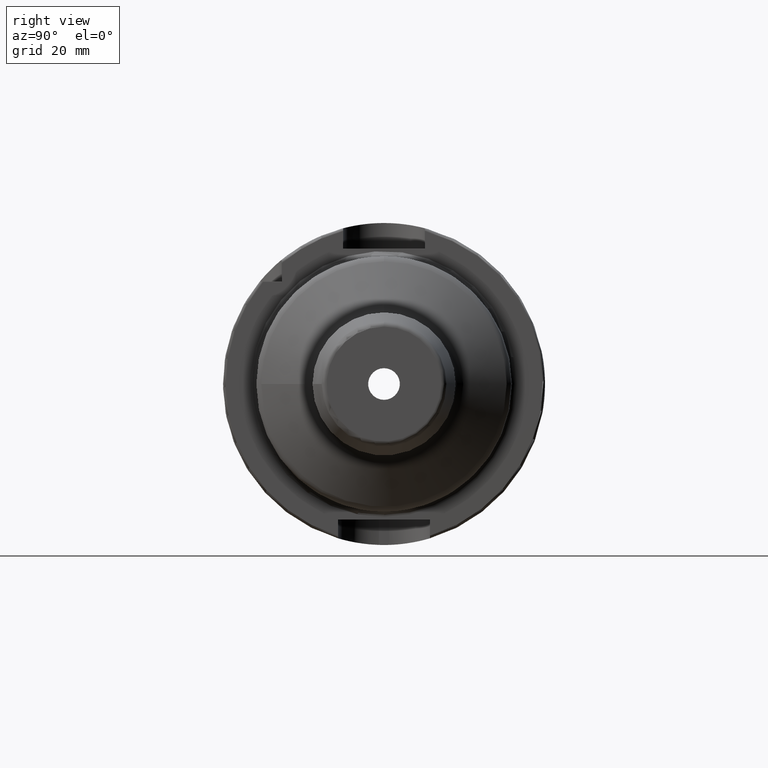
[diagram: clean part render]
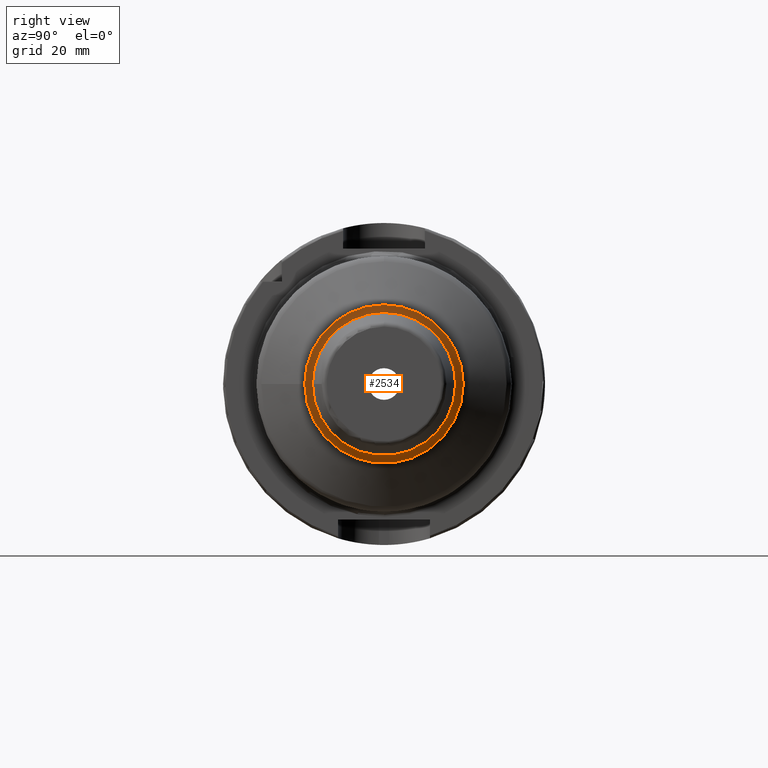
[diagram: same view with one face highlighted and labeled with its STEP entity id]
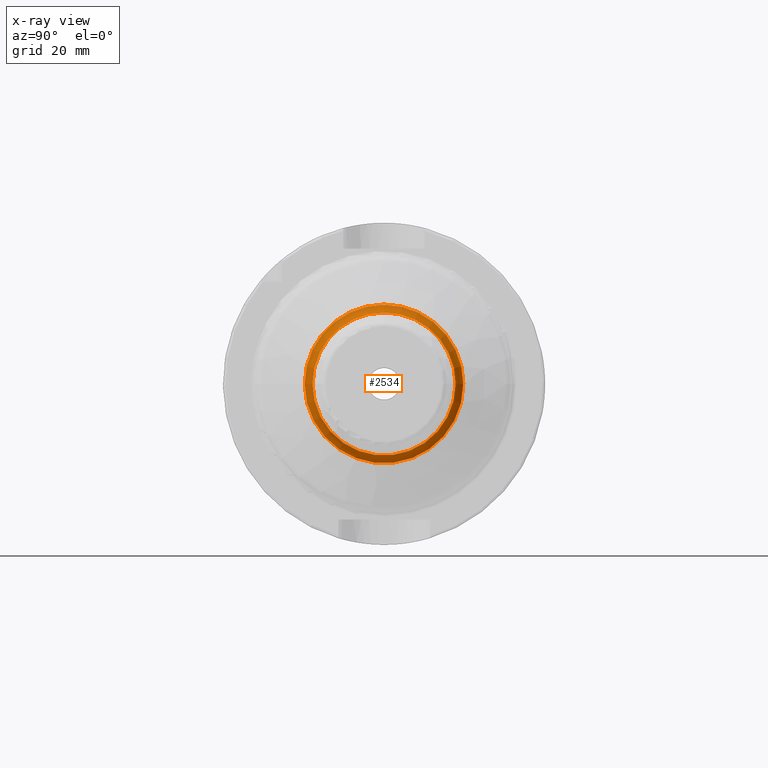
[diagram: x-ray of the same camera — body ghosted, the highlighted face saturated]
A machine part, right view. The second image highlights one B-rep face of the part: STEP entity #2534.
The next image is the same camera in x-ray: the body ghosted, the highlighted face saturated — about 0% of this face is hidden behind the body in this view.
In plain terms, the highlighted toroidal blend (fillet) surface has major radius 17 mm and minor (blend) radius 3 mm.
Its self-contained STEP definition (entity closure, byte-faithful):
#453=FACE_OUTER_BOUND('',#587,.T.);
#587=EDGE_LOOP('',(#1783,#1784,#1785,#1786,#1787,#1788,#1789,#1790));
#725=CIRCLE('',#2684,14.);
#726=CIRCLE('',#2685,14.);
#727=CIRCLE('',#2686,14.);
#777=CIRCLE('',#2751,15.5);
#778=CIRCLE('',#2752,3.);
#779=CIRCLE('',#2753,15.5);
#780=CIRCLE('',#2754,15.5);
#947=VERTEX_POINT('',#3889);
#948=VERTEX_POINT('',#3891);
#949=VERTEX_POINT('',#3893);
#992=VERTEX_POINT('',#4009);
#993=VERTEX_POINT('',#4010);
#994=VERTEX_POINT('',#4013);
#1241=EDGE_CURVE('',#948,#947,#725,.T.);
#1242=EDGE_CURVE('',#949,#948,#726,.T.);
#1243=EDGE_CURVE('',#947,#949,#727,.T.);
#1300=EDGE_CURVE('',#992,#993,#777,.T.);
#1301=EDGE_CURVE('',#993,#949,#778,.T.);
#1302=EDGE_CURVE('',#993,#994,#779,.T.);
#1303=EDGE_CURVE('',#994,#992,#780,.T.);
#1783=ORIENTED_EDGE('',*,*,#1300,.T.);
#1784=ORIENTED_EDGE('',*,*,#1301,.T.);
#1785=ORIENTED_EDGE('',*,*,#1242,.T.);
#1786=ORIENTED_EDGE('',*,*,#1241,.T.);
#1787=ORIENTED_EDGE('',*,*,#1243,.T.);
#1788=ORIENTED_EDGE('',*,*,#1301,.F.);
#1789=ORIENTED_EDGE('',*,*,#1302,.T.);
#1790=ORIENTED_EDGE('',*,*,#1303,.T.);
#2491=TOROIDAL_SURFACE('',#2750,17.,3.);
#2534=ADVANCED_FACE('',(#453),#2491,.F.);
#2684=AXIS2_PLACEMENT_3D('',#3892,#3060,#3061);
#2685=AXIS2_PLACEMENT_3D('',#3894,#3062,#3063);
#2686=AXIS2_PLACEMENT_3D('',#3895,#3064,#3065);
#2750=AXIS2_PLACEMENT_3D('',#4008,#3199,#3200);
#2751=AXIS2_PLACEMENT_3D('',#4011,#3201,#3202);
#2752=AXIS2_PLACEMENT_3D('',#4012,#3203,#3204);
#2753=AXIS2_PLACEMENT_3D('',#4014,#3205,#3206);
#2754=AXIS2_PLACEMENT_3D('',#4015,#3207,#3208);
#3060=DIRECTION('center_axis',(-1.,0.,0.));
#3061=DIRECTION('ref_axis',(0.,-1.,1.83697019872103E-16));
#3062=DIRECTION('center_axis',(-1.,0.,0.));
#3063=DIRECTION('ref_axis',(0.,-1.,1.83697019872103E-16));
#3064=DIRECTION('center_axis',(-1.,0.,0.));
#3065=DIRECTION('ref_axis',(0.,-1.,1.83697019872103E-16));
#3199=DIRECTION('center_axis',(1.,0.,0.));
#3200=DIRECTION('ref_axis',(0.,0.,-1.));
#3201=DIRECTION('center_axis',(1.,0.,0.));
#3202=DIRECTION('ref_axis',(0.,-1.,3.06161699786838E-17));
#3203=DIRECTION('center_axis',(0.,-1.,-1.22464679914735E-16));
#3204=DIRECTION('ref_axis',(0.,-1.22464679914735E-16,1.));
#3205=DIRECTION('center_axis',(1.,0.,0.));
#3206=DIRECTION('ref_axis',(0.,-1.,3.06161699786838E-17));
#3207=DIRECTION('center_axis',(1.,0.,0.));
#3208=DIRECTION('ref_axis',(0.,-1.,3.06161699786838E-17));
#3889=CARTESIAN_POINT('',(48.7320508075689,-14.,-1.71450551880629E-15));
#3891=CARTESIAN_POINT('',(48.7320508075689,14.,-4.28626379701574E-15));
#3892=CARTESIAN_POINT('Origin',(48.7320508075689,0.,0.));
#3893=CARTESIAN_POINT('',(48.7320508075689,-1.71450551880629E-15,14.));
#3894=CARTESIAN_POINT('Origin',(48.7320508075689,0.,0.));
#3895=CARTESIAN_POINT('Origin',(48.7320508075689,0.,0.));
#4008=CARTESIAN_POINT('Origin',(48.7320508075689,0.,0.));
#4009=CARTESIAN_POINT('',(46.1339745962156,15.5,-9.49101269339198E-16));
#4010=CARTESIAN_POINT('',(46.1339745962156,-1.8982025386784E-15,15.5));
#4011=CARTESIAN_POINT('Origin',(46.1339745962156,0.,-2.372753173348E-15));
#4012=CARTESIAN_POINT('Origin',(48.7320508075689,-2.0818995585505E-15,17.));
#4013=CARTESIAN_POINT('',(46.1339745962156,-15.5,-1.8982025386784E-15));
#4014=CARTESIAN_POINT('Origin',(46.1339745962156,0.,-2.372753173348E-15));
#4015=CARTESIAN_POINT('Origin',(46.1339745962156,0.,-2.372753173348E-15));